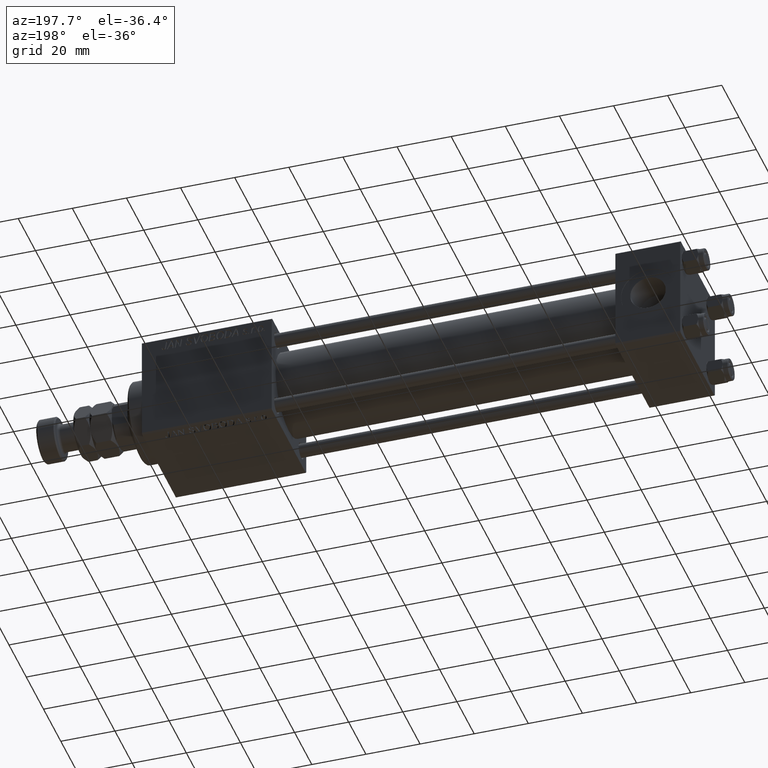
[diagram: clean part render]
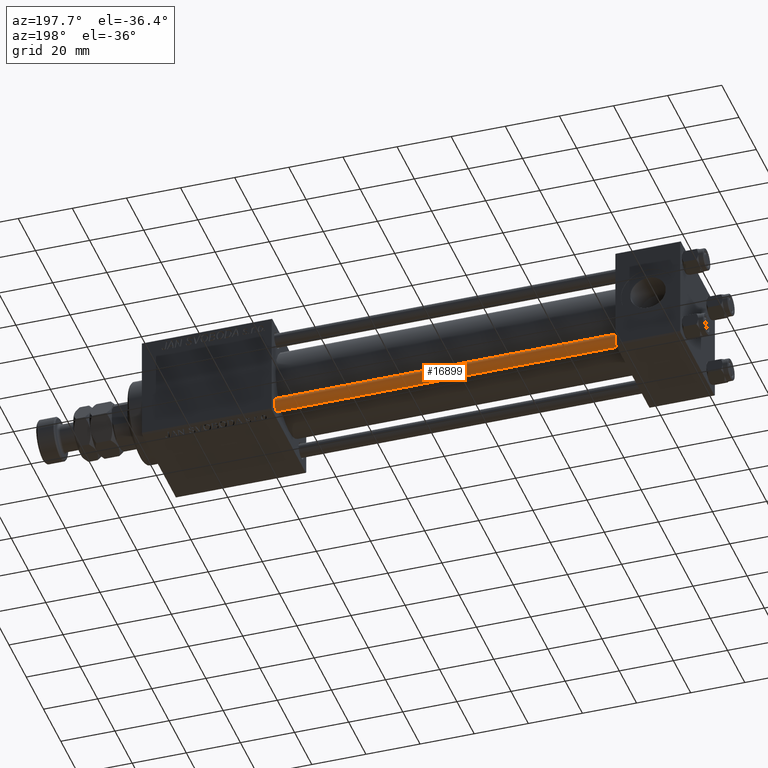
[diagram: same view with one face highlighted and labeled with its STEP entity id]
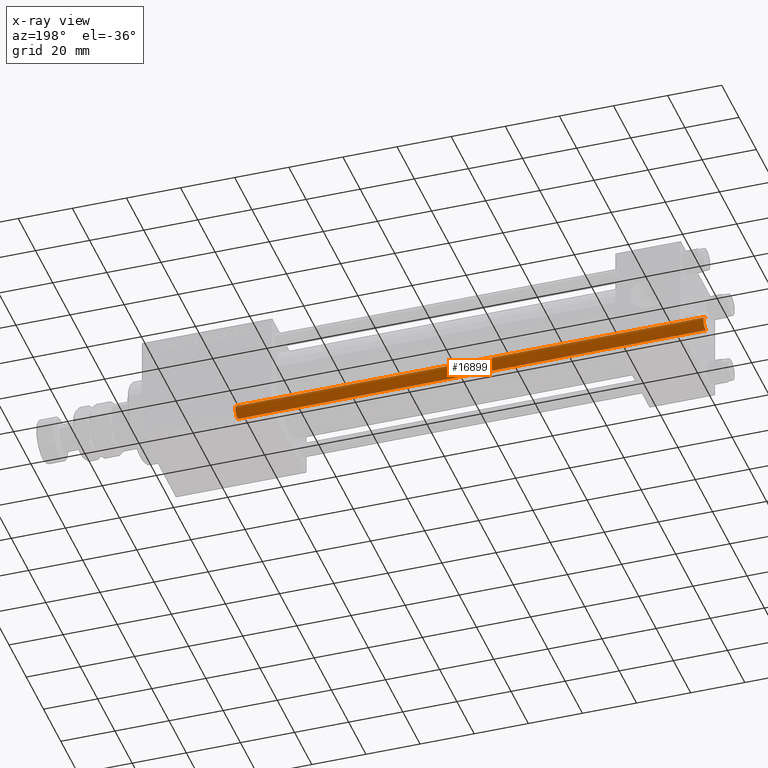
[diagram: x-ray of the same camera — body ghosted, the highlighted face saturated]
A machine part, auxiliary view. The second image highlights one B-rep face of the part: STEP entity #16899.
The next image is the same camera in x-ray: the body ghosted, the highlighted face saturated — about 0% of this face is hidden behind the body in this view.
In plain terms, the highlighted cylindrical surface (edge-blend (fillet) strip) has radius 2.5 mm, axis along (1, -0, 0).
Its self-contained STEP definition (entity closure, byte-faithful):
#299 = DIRECTION ( 'NONE',  ( -0.000000000000000000, -0.000000000000000000, -1.000000000000000000 ) ) ;
#2717 = AXIS2_PLACEMENT_3D ( 'NONE', #44416, #7334, #41682 ) ;
#3697 = CARTESIAN_POINT ( 'NONE',  ( 2.500000000000000000, 3.061616997868383141E-16, 0.5000000000000281997 ) ) ;
#7037 = ORIENTED_EDGE ( 'NONE', *, *, #37106, .T. ) ;
#7334 = DIRECTION ( 'NONE',  ( 0.000000000000000000, 0.000000000000000000, -1.000000000000000000 ) ) ;
#7638 = EDGE_LOOP ( 'NONE', ( #12515, #7037, #29721, #47950 ) ) ;
#9942 = DIRECTION ( 'NONE',  ( -0.000000000000000000, -0.000000000000000000, 1.000000000000000000 ) ) ;
#11360 = CIRCLE ( 'NONE', #17371, 2.500000000000000000 ) ;
#12515 = ORIENTED_EDGE ( 'NONE', *, *, #35595, .T. ) ;
#16564 = DIRECTION ( 'NONE',  ( -1.000000000000000000, 0.000000000000000000, 0.000000000000000000 ) ) ;
#16866 = DIRECTION ( 'NONE',  ( -0.000000000000000000, -0.000000000000000000, -1.000000000000000000 ) ) ;
#16899 = ADVANCED_FACE ( 'NONE', ( #33306 ), #20878, .T. ) ;
#17371 = AXIS2_PLACEMENT_3D ( 'NONE', #22110, #9942, #46208 ) ;
#18110 = VERTEX_POINT ( 'NONE', #42461 ) ;
#20080 = VECTOR ( 'NONE', #41970, 1000.000000000000000 ) ;
#20609 = CARTESIAN_POINT ( 'NONE',  ( -2.500000000000000000, 0.000000000000000000, 174.0000000000000000 ) ) ;
#20878 = CYLINDRICAL_SURFACE ( 'NONE', #27217, 2.500000000000000000 ) ;
#22110 = CARTESIAN_POINT ( 'NONE',  ( 0.000000000000000000, 0.000000000000000000, 0.5000000000000281997 ) ) ;
#27217 = AXIS2_PLACEMENT_3D ( 'NONE', #37386, #299, #16564 ) ;
#29721 = ORIENTED_EDGE ( 'NONE', *, *, #34133, .T. ) ;
#33306 = FACE_OUTER_BOUND ( 'NONE', #7638, .T. ) ;
#34133 = EDGE_CURVE ( 'NONE', #39398, #44362, #11360, .T. ) ;
#35595 = EDGE_CURVE ( 'NONE', #37702, #18110, #41639, .T. ) ;
#37106 = EDGE_CURVE ( 'NONE', #18110, #39398, #50413, .T. ) ;
#37386 = CARTESIAN_POINT ( 'NONE',  ( 0.000000000000000000, 0.000000000000000000, 174.0000000000000000 ) ) ;
#37702 = VERTEX_POINT ( 'NONE', #39097 ) ;
#39042 = VECTOR ( 'NONE', #16866, 1000.000000000000000 ) ;
#39097 = CARTESIAN_POINT ( 'NONE',  ( -2.500000000000000000, 0.000000000000000000, 173.5000000000000000 ) ) ;
#39398 = VERTEX_POINT ( 'NONE', #3697 ) ;
#41186 = LINE ( 'NONE', #20609, #20080 ) ;
#41276 = EDGE_CURVE ( 'NONE', #37702, #44362, #41186, .T. ) ;
#41639 = CIRCLE ( 'NONE', #2717, 2.500000000000000000 ) ;
#41682 = DIRECTION ( 'NONE',  ( 1.000000000000000000, 0.000000000000000000, 0.000000000000000000 ) ) ;
#41970 = DIRECTION ( 'NONE',  ( -0.000000000000000000, -0.000000000000000000, -1.000000000000000000 ) ) ;
#42461 = CARTESIAN_POINT ( 'NONE',  ( 2.500000000000000000, 3.061616997868383141E-16, 173.5000000000000000 ) ) ;
#44362 = VERTEX_POINT ( 'NONE', #45883 ) ;
#44416 = CARTESIAN_POINT ( 'NONE',  ( 0.000000000000000000, 0.000000000000000000, 173.5000000000000000 ) ) ;
#45883 = CARTESIAN_POINT ( 'NONE',  ( -2.500000000000000000, 0.000000000000000000, 0.5000000000000281997 ) ) ;
#46208 = DIRECTION ( 'NONE',  ( 1.000000000000000000, 0.000000000000000000, 0.000000000000000000 ) ) ;
#47950 = ORIENTED_EDGE ( 'NONE', *, *, #41276, .F. ) ;
#50413 = LINE ( 'NONE', #50951, #39042 ) ;
#50951 = CARTESIAN_POINT ( 'NONE',  ( 2.500000000000000000, 3.061616997868383141E-16, 174.0000000000000000 ) ) ;